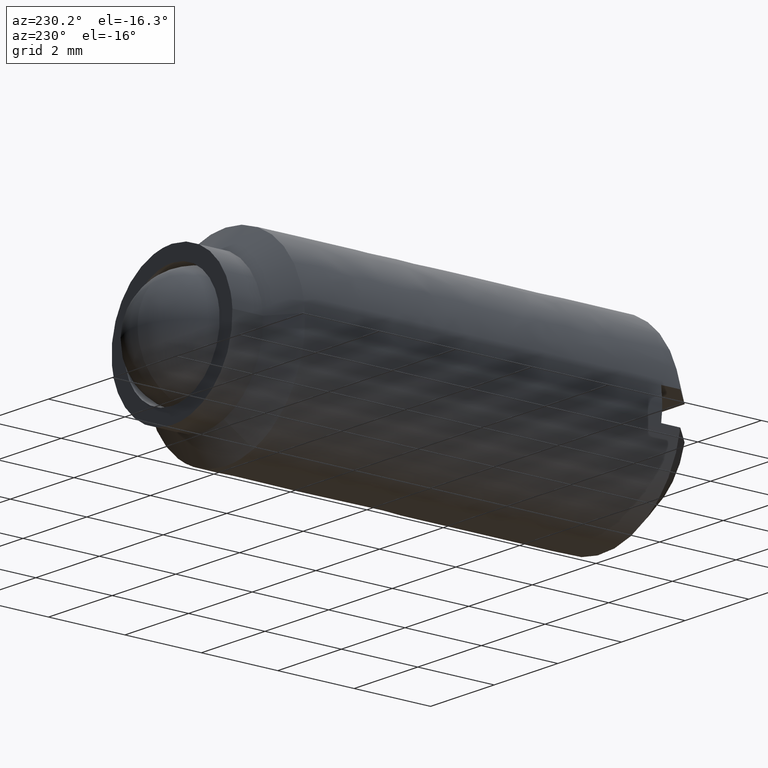
[diagram: clean part render]
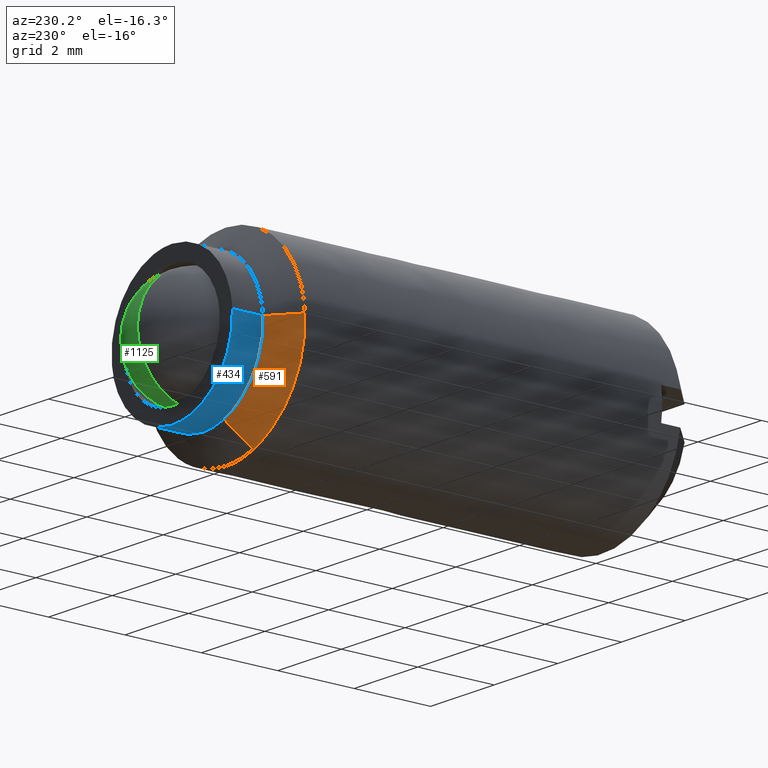
[diagram: same view with three faces highlighted in distinct colors, each labeled with its STEP entity id]
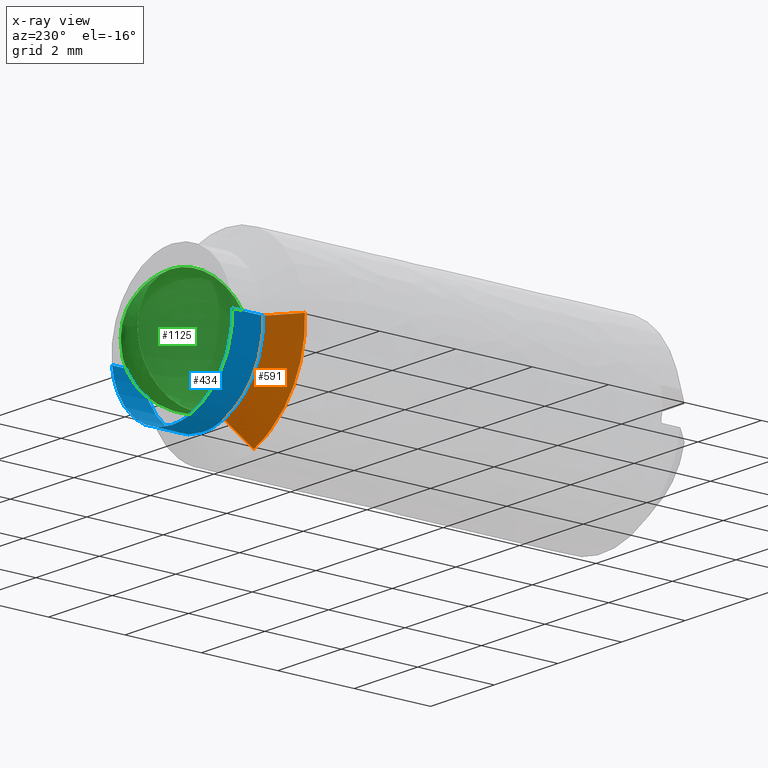
[diagram: x-ray of the same camera — body ghosted, the three highlighted faces saturated]
A machine part, auxiliary view with three faces highlighted in distinct colors.
The next image is the same camera in x-ray (body ghosted, the three faces saturated) — at least one of them is partly hidden behind the body in this view.
Their STEP definitions:

[orange] entity #591 — the highlighted face is a freeform B-spline surface patch.
#286=CARTESIAN_POINT('',(-1.896456117002499,-1.700000000003540,0.115992225129656));
#287=VERTEX_POINT('',#286);
#386=CARTESIAN_POINT('',(-0.668074151346452,-1.700000000000239,-1.778672799674979));
#387=VERTEX_POINT('',#386);
#401=CARTESIAN_POINT('',(-1.896456117002499,-1.700000000003540,0.115992225129656));
#402=CARTESIAN_POINT('',(-1.900000000000000,-1.700000000000000,0.058050250294034));
#403=CARTESIAN_POINT('',(-1.900000000000000,-1.700000000000000,-8.511014E-016));
#404=CARTESIAN_POINT('',(-1.900000000000000,-1.700000000000000,-1.315958231815637));
#405=CARTESIAN_POINT('',(-0.668074151346452,-1.700000000000239,-1.778672799674979));
#413=(BOUNDED_CURVE()B_SPLINE_CURVE(2,(#401,#402,#403,#404,#405),.UNSPECIFIED.,.F.,.U.)B_SPLINE_CURVE_WITH_KNOTS((3,2,3),(0.739332962237120,0.750000000000000,0.940284170898487),.UNSPECIFIED.)CURVE()GEOMETRIC_REPRESENTATION_ITEM()RATIONAL_B_SPLINE_CURVE((0.976072041662812,0.987502787897702,1.0,0.777068226785173,0.893499554635248))REPRESENTATION_ITEM(''));
#414=EDGE_CURVE('',#287,#387,#413,.T.);
#465=CARTESIAN_POINT('',(-2.495336996056258,-2.300000000002961,0.152621348859628));
#466=VERTEX_POINT('',#465);
#467=CARTESIAN_POINT('',(-1.896456117002499,-1.700000000003540,0.115992225129656));
#468=CARTESIAN_POINT('',(-2.495336996056258,-2.300000000002961,0.152621348859628));
#469=QUASI_UNIFORM_CURVE('',1,(#467,#468),.UNSPECIFIED.,.F.,.U.);
#470=EDGE_CURVE('',#287,#466,#469,.T.);
#534=CARTESIAN_POINT('',(-0.879044935992926,-2.300000000001367,-2.340358946937847));
#535=VERTEX_POINT('',#534);
#549=CARTESIAN_POINT('',(-0.668074151346452,-1.700000000000239,-1.778672799674979));
#550=CARTESIAN_POINT('',(-0.879044935992926,-2.300000000001367,-2.340358946937847));
#551=QUASI_UNIFORM_CURVE('',1,(#549,#550),.UNSPECIFIED.,.F.,.U.);
#552=EDGE_CURVE('',#387,#535,#551,.T.);
#557=CARTESIAN_POINT('',(-1.881484095025218,-1.685000000000000,0.115076497023204));
#558=CARTESIAN_POINT('',(-1.966502165108708,-1.685000000000000,-1.274956661698778));
#559=CARTESIAN_POINT('',(-0.662799881728113,-1.685000000000000,-1.764630645993999));
#560=CARTESIAN_POINT('',(-2.510683318580403,-2.315375000000000,0.153559970132490));
#561=CARTESIAN_POINT('',(-2.624132829474971,-2.315375000000001,-1.701323136827887));
#562=CARTESIAN_POINT('',(-0.884451062335201,-2.315375000000000,-2.354752154465334));
#570=(BOUNDED_SURFACE()B_SPLINE_SURFACE(2,1,((#557,#560),(#558,#561),(#559,#562)),.UNSPECIFIED.,.F.,.F.,.U.)B_SPLINE_SURFACE_WITH_KNOTS((3,3),(2,2),(0.0,3.311362208846373),(0.0,1.0),.UNSPECIFIED.)GEOMETRIC_REPRESENTATION_ITEM()RATIONAL_B_SPLINE_SURFACE(((1.0,1.0),(0.765685424949238,0.765685424949238),(0.906274169979695,0.906274169979695)))REPRESENTATION_ITEM('')SURFACE());
#571=ORIENTED_EDGE('',*,*,#414,.T.);
#572=ORIENTED_EDGE('',*,*,#552,.T.);
#573=CARTESIAN_POINT('',(-2.495336996056259,-2.300000000002961,0.152621348859628));
#574=CARTESIAN_POINT('',(-2.500000000000000,-2.300000000000000,0.076381908268839));
#575=CARTESIAN_POINT('',(-2.500000000000000,-2.300000000000000,-8.511014E-016));
#576=CARTESIAN_POINT('',(-2.500000000000000,-2.300000000000000,-1.731523989214695));
#577=CARTESIAN_POINT('',(-0.879044935992926,-2.300000000001367,-2.340358946937847));
#585=(BOUNDED_CURVE()B_SPLINE_CURVE(2,(#573,#574,#575,#576,#577),.UNSPECIFIED.,.F.,.U.)B_SPLINE_CURVE_WITH_KNOTS((3,2,3),(0.739332962238884,0.750000000000000,0.940284170897086),.UNSPECIFIED.)CURVE()GEOMETRIC_REPRESENTATION_ITEM()RATIONAL_B_SPLINE_CURVE((0.976072041666591,0.987502787899768,1.0,0.777068226786814,0.893499554633534))REPRESENTATION_ITEM(''));
#586=EDGE_CURVE('',#466,#535,#585,.T.);
#587=ORIENTED_EDGE('',*,*,#586,.F.);
#588=ORIENTED_EDGE('',*,*,#470,.F.);
#589=EDGE_LOOP('',(#571,#572,#587,#588));
#590=FACE_OUTER_BOUND('',#589,.T.);
#591=ADVANCED_FACE('',(#590),#570,.T.);

[blue] entity #434 — the highlighted face is a freeform B-spline surface patch.
#252=CARTESIAN_POINT('',(1.886718476477220,-0.899999999999935,-0.224261879304770));
#253=VERTEX_POINT('',#252);
#271=CARTESIAN_POINT('',(-1.896456117001057,-0.900000000000000,0.115992225124233));
#272=VERTEX_POINT('',#271);
#286=CARTESIAN_POINT('',(-1.896456117002499,-1.700000000003540,0.115992225129656));
#287=VERTEX_POINT('',#286);
#288=CARTESIAN_POINT('',(-1.896456117001057,-0.900000000000000,0.115992225124233));
#289=CARTESIAN_POINT('',(-1.896456117002499,-1.700000000003540,0.115992225129656));
#290=QUASI_UNIFORM_CURVE('',1,(#288,#289),.UNSPECIFIED.,.F.,.U.);
#291=EDGE_CURVE('',#272,#287,#290,.T.);
#308=CARTESIAN_POINT('',(1.886718471939577,-1.700000000000000,-0.224261917480567));
#309=VERTEX_POINT('',#308);
#325=CARTESIAN_POINT('',(1.886718476477220,-0.899999999999935,-0.224261879304770));
#326=CARTESIAN_POINT('',(1.886718471939577,-1.700000000000000,-0.224261917480567));
#327=QUASI_UNIFORM_CURVE('',1,(#325,#326),.UNSPECIFIED.,.F.,.U.);
#328=EDGE_CURVE('',#253,#309,#327,.T.);
#333=CARTESIAN_POINT('',(-1.894857721785848,-0.880000000000000,0.142125755886582));
#334=CARTESIAN_POINT('',(-1.895654631978397,-0.879999999999999,0.129096389410968));
#335=CARTESIAN_POINT('',(-2.012448342117775,-0.880000000000000,-1.780463891885319));
#336=CARTESIAN_POINT('',(-0.115992225116228,-0.880000000000000,-1.896456117001548));
#337=CARTESIAN_POINT('',(1.674932632595051,-0.880000000000000,-2.005993773791804));
#338=CARTESIAN_POINT('',(1.888303844454935,-0.880000000000000,-0.210924346309455));
#339=CARTESIAN_POINT('',(1.889881066098256,-0.880000000000000,-0.197655347518057));
#340=CARTESIAN_POINT('',(-1.894857721785848,-1.720500000000001,0.142125755886582));
#341=CARTESIAN_POINT('',(-1.895654631978397,-1.720500000000000,0.129096389410968));
#342=CARTESIAN_POINT('',(-2.012448342117775,-1.720500000000000,-1.780463891885319));
#343=CARTESIAN_POINT('',(-0.115992225116228,-1.720500000000000,-1.896456117001548));
#344=CARTESIAN_POINT('',(1.674932632595051,-1.720500000000000,-2.005993773791804));
#345=CARTESIAN_POINT('',(1.888303844454935,-1.720500000000000,-0.210924346309455));
#346=CARTESIAN_POINT('',(1.889881066098256,-1.720500000000001,-0.197655347518057));
#354=(BOUNDED_SURFACE()B_SPLINE_SURFACE(2,1,((#333,#340),(#334,#341),(#335,#342),(#336,#343),(#337,#344),(#338,#345),(#339,#346)),.UNSPECIFIED.,.F.,.F.,.U.)B_SPLINE_SURFACE_WITH_KNOTS((3,1,2,1,3),(2,2),(0.0,0.030850643711267,3.178873717746789,6.200975868820890,6.231830164430668),(0.0,1.0),.UNSPECIFIED.)GEOMETRIC_REPRESENTATION_ITEM()RATIONAL_B_SPLINE_SURFACE(((1.005740710361107,1.005740710361107),(1.002870355180554,1.002870355180554),(0.707106781186548,0.707106781186548),(1.0,1.0),(0.718822509939086,0.718822509939086),(0.980146840153292,0.980146840153292),(0.982787879511457,0.982787879511457)))REPRESENTATION_ITEM('')SURFACE());
#355=CARTESIAN_POINT('',(0.0,-0.900000000000000,-1.900000000000001));
#356=VERTEX_POINT('',#355);
#357=CARTESIAN_POINT('',(0.0,-0.900000000000000,-1.900000000000001));
#358=CARTESIAN_POINT('',(1.687534451488845,-0.900000000000000,-1.900000000000002));
#359=CARTESIAN_POINT('',(1.886718476477220,-0.899999999999935,-0.224261879304770));
#367=(BOUNDED_CURVE()B_SPLINE_CURVE(2,(#357,#358,#359),.UNSPECIFIED.,.F.,.U.)B_SPLINE_CURVE_WITH_KNOTS((3,3),(0.0,0.229562757159565),.UNSPECIFIED.)CURVE()GEOMETRIC_REPRESENTATION_ITEM()RATIONAL_B_SPLINE_CURVE((1.0,0.731050500543376,0.956027310142333))REPRESENTATION_ITEM(''));
#368=EDGE_CURVE('',#356,#253,#367,.T.);
#369=ORIENTED_EDGE('',*,*,#368,.T.);
#370=ORIENTED_EDGE('',*,*,#328,.T.);
#371=CARTESIAN_POINT('',(0.0,-1.700000000000000,-1.900000000000001));
#372=VERTEX_POINT('',#371);
#373=CARTESIAN_POINT('',(0.0,-1.700000000000000,-1.900000000000001));
#374=CARTESIAN_POINT('',(1.687534417102971,-1.700000000000001,-1.900000000000001));
#375=CARTESIAN_POINT('',(1.886718471939578,-1.700000000000000,-0.224261917480567));
#383=(BOUNDED_CURVE()B_SPLINE_CURVE(2,(#373,#374,#375),.UNSPECIFIED.,.F.,.U.)B_SPLINE_CURVE_WITH_KNOTS((3,3),(0.0,0.229562753739958),.UNSPECIFIED.)CURVE()GEOMETRIC_REPRESENTATION_ITEM()RATIONAL_B_SPLINE_CURVE((1.0,0.731050504549695,0.956027303439745))REPRESENTATION_ITEM(''));
#384=EDGE_CURVE('',#372,#309,#383,.T.);
#385=ORIENTED_EDGE('',*,*,#384,.F.);
#386=CARTESIAN_POINT('',(-0.668074151346452,-1.700000000000239,-1.778672799674979));
#387=VERTEX_POINT('',#386);
#388=CARTESIAN_POINT('',(-0.668074151346452,-1.700000000000240,-1.778672799674979));
#389=CARTESIAN_POINT('',(-0.345054033529472,-1.700000000000000,-1.900000000000001));
#390=CARTESIAN_POINT('',(0.0,-1.700000000000000,-1.900000000000001));
#398=(BOUNDED_CURVE()B_SPLINE_CURVE(2,(#388,#389,#390),.UNSPECIFIED.,.F.,.U.)B_SPLINE_CURVE_WITH_KNOTS((3,3),(0.940284170898487,1.0),.UNSPECIFIED.)CURVE()GEOMETRIC_REPRESENTATION_ITEM()RATIONAL_B_SPLINE_CURVE((0.893499554635248,0.930038554401375,1.0))REPRESENTATION_ITEM(''));
#399=EDGE_CURVE('',#387,#372,#398,.T.);
#400=ORIENTED_EDGE('',*,*,#399,.F.);
#401=CARTESIAN_POINT('',(-1.896456117002499,-1.700000000003540,0.115992225129656));
#402=CARTESIAN_POINT('',(-1.900000000000000,-1.700000000000000,0.058050250294034));
#403=CARTESIAN_POINT('',(-1.900000000000000,-1.700000000000000,-8.511014E-016));
#404=CARTESIAN_POINT('',(-1.900000000000000,-1.700000000000000,-1.315958231815637));
#405=CARTESIAN_POINT('',(-0.668074151346452,-1.700000000000239,-1.778672799674979));
#413=(BOUNDED_CURVE()B_SPLINE_CURVE(2,(#401,#402,#403,#404,#405),.UNSPECIFIED.,.F.,.U.)B_SPLINE_CURVE_WITH_KNOTS((3,2,3),(0.739332962237120,0.750000000000000,0.940284170898487),.UNSPECIFIED.)CURVE()GEOMETRIC_REPRESENTATION_ITEM()RATIONAL_B_SPLINE_CURVE((0.976072041662812,0.987502787897702,1.0,0.777068226785173,0.893499554635248))REPRESENTATION_ITEM(''));
#414=EDGE_CURVE('',#287,#387,#413,.T.);
#415=ORIENTED_EDGE('',*,*,#414,.F.);
#416=ORIENTED_EDGE('',*,*,#291,.F.);
#417=CARTESIAN_POINT('',(-1.896456117001057,-0.900000000000000,0.115992225124233));
#418=CARTESIAN_POINT('',(-1.900000000000000,-0.900000000000000,0.058050250275346));
#419=CARTESIAN_POINT('',(-1.900000000000000,-0.900000000000000,-8.511014E-016));
#420=CARTESIAN_POINT('',(-1.900000000000000,-0.900000000000000,-1.900000000000001));
#421=CARTESIAN_POINT('',(0.0,-0.900000000000000,-1.900000000000001));
#429=(BOUNDED_CURVE()B_SPLINE_CURVE(2,(#417,#418,#419,#420,#421),.UNSPECIFIED.,.F.,.U.)B_SPLINE_CURVE_WITH_KNOTS((3,2,3),(0.739332962240511,0.750000000000000,1.0),.UNSPECIFIED.)CURVE()GEOMETRIC_REPRESENTATION_ITEM()RATIONAL_B_SPLINE_CURVE((0.976072041670080,0.987502787901675,1.0,0.707106781186547,1.0))REPRESENTATION_ITEM(''));
#430=EDGE_CURVE('',#272,#356,#429,.T.);
#431=ORIENTED_EDGE('',*,*,#430,.T.);
#432=EDGE_LOOP('',(#369,#370,#385,#400,#415,#416,#431));
#433=FACE_OUTER_BOUND('',#432,.T.);
#434=ADVANCED_FACE('',(#433),#354,.T.);

[green] entity #1125 — the highlighted face is a freeform B-spline surface patch.
#1045=CARTESIAN_POINT('',(-0.562500000000000,-2.483258295159517,-0.983258295159516));
#1046=CARTESIAN_POINT('',(-0.367924528301887,-2.390498078635035,-1.187330771513378));
#1047=CARTESIAN_POINT('',(-0.071428571428571,-1.874574588632197,-1.498298354528787));
#1048=CARTESIAN_POINT('',(-0.071428571428571,-1.125425411367803,-1.498298354528787));
#1049=CARTESIAN_POINT('',(-0.367924528301887,-0.609501921364966,-1.187330771513378));
#1050=CARTESIAN_POINT('',(-0.562500000000000,-0.516741704840483,-0.983258295159516));
#1051=CARTESIAN_POINT('',(-0.367924528301887,-2.687330771513379,-0.890498078635033));
#1052=CARTESIAN_POINT('',(-0.071428571428571,-2.623723765896591,-1.123723765896590));
#1053=CARTESIAN_POINT('',(0.435483870967742,-2.007488152340396,-1.522464457021187));
#1054=CARTESIAN_POINT('',(0.435483870967742,-0.992511847659605,-1.522464457021187));
#1055=CARTESIAN_POINT('',(-0.071428571428571,-0.376276234103409,-1.123723765896590));
#1056=CARTESIAN_POINT('',(-0.367924528301887,-0.312669228486621,-0.890498078635033));
#1057=CARTESIAN_POINT('',(-0.071428571428571,-2.998298354528788,-0.374574588632196));
#1058=CARTESIAN_POINT('',(0.435483870967742,-3.022464457021188,-0.507488152340395));
#1059=CARTESIAN_POINT('',(1.500000000000000,-2.286606636127614,-0.786606636127613));
#1060=CARTESIAN_POINT('',(1.500000000000000,-0.713393363872387,-0.786606636127613));
#1061=CARTESIAN_POINT('',(0.435483870967742,0.022464457021187,-0.507488152340395));
#1062=CARTESIAN_POINT('',(-0.071428571428571,-0.001701645471212,-0.374574588632196));
#1063=CARTESIAN_POINT('',(-0.071428571428571,-2.998298354528788,0.374574588632198));
#1064=CARTESIAN_POINT('',(0.435483870967742,-3.022464457021188,0.507488152340396));
#1065=CARTESIAN_POINT('',(1.500000000000000,-2.286606636127614,0.786606636127614));
#1066=CARTESIAN_POINT('',(1.500000000000000,-0.713393363872387,0.786606636127614));
#1067=CARTESIAN_POINT('',(0.435483870967742,0.022464457021187,0.507488152340396));
#1068=CARTESIAN_POINT('',(-0.071428571428571,-0.001701645471212,0.374574588632198));
#1069=CARTESIAN_POINT('',(-0.367924528301887,-2.687330771513379,0.890498078635035));
#1070=CARTESIAN_POINT('',(-0.071428571428571,-2.623723765896591,1.123723765896592));
#1071=CARTESIAN_POINT('',(0.435483870967742,-2.007488152340396,1.522464457021189));
#1072=CARTESIAN_POINT('',(0.435483870967742,-0.992511847659605,1.522464457021189));
#1073=CARTESIAN_POINT('',(-0.071428571428571,-0.376276234103409,1.123723765896592));
#1074=CARTESIAN_POINT('',(-0.367924528301887,-0.312669228486621,0.890498078635035));
#1075=CARTESIAN_POINT('',(-0.562500000000000,-2.483258295159517,0.983258295159517));
#1076=CARTESIAN_POINT('',(-0.367924528301887,-2.390498078635035,1.187330771513380));
#1077=CARTESIAN_POINT('',(-0.071428571428571,-1.874574588632197,1.498298354528788));
#1078=CARTESIAN_POINT('',(-0.071428571428571,-1.125425411367803,1.498298354528788));
#1079=CARTESIAN_POINT('',(-0.367924528301887,-0.609501921364966,1.187330771513380));
#1080=CARTESIAN_POINT('',(-0.562500000000000,-0.516741704840483,0.983258295159517));
#1088=(BOUNDED_SURFACE()B_SPLINE_SURFACE(2,2,((#1045,#1051,#1057,#1063,#1069,#1075),(#1046,#1052,#1058,#1064,#1070,#1076),(#1047,#1053,#1059,#1065,#1071,#1077),(#1048,#1054,#1060,#1066,#1072,#1078),(#1049,#1055,#1061,#1067,#1073,#1079),(#1050,#1056,#1062,#1068,#1074,#1080)),.UNSPECIFIED.,.F.,.F.,.U.)GEOMETRIC_REPRESENTATION_ITEM()QUASI_UNIFORM_SURFACE()RATIONAL_B_SPLINE_SURFACE(((3.200000000000000,2.650000000000000,2.100000000000000,2.100000000000000,2.650000000000000,3.200000000000000),(2.650000000000000,2.100000000000000,1.550000000000000,1.550000000000000,2.100000000000000,2.650000000000000),(2.100000000000000,1.550000000000000,1.0,1.0,1.550000000000000,2.100000000000000),(2.100000000000000,1.550000000000000,1.0,1.0,1.550000000000000,2.100000000000000),(2.650000000000000,2.100000000000000,1.550000000000000,1.550000000000000,2.100000000000000,2.650000000000000),(3.200000000000000,2.650000000000000,2.100000000000000,2.100000000000000,2.650000000000000,3.200000000000000)))REPRESENTATION_ITEM('')SURFACE());
#1089=CARTESIAN_POINT('',(0.0,0.0,7.592559E-016));
#1090=VERTEX_POINT('',#1089);
#1091=CARTESIAN_POINT('',(0.0,-3.0,7.592559E-016));
#1092=VERTEX_POINT('',#1091);
#1093=CARTESIAN_POINT('',(0.0,0.0,7.592559E-016));
#1094=CARTESIAN_POINT('',(0.0,0.0,1.500000000000001));
#1095=CARTESIAN_POINT('',(0.0,-1.500000000000000,1.500000000000001));
#1096=CARTESIAN_POINT('',(0.0,-3.0,1.500000000000001));
#1097=CARTESIAN_POINT('',(0.0,-3.0,7.592559E-016));
#1105=(BOUNDED_CURVE()B_SPLINE_CURVE(2,(#1093,#1094,#1095,#1096,#1097),.UNSPECIFIED.,.F.,.U.)B_SPLINE_CURVE_WITH_KNOTS((3,2,3),(0.0,0.500000000000000,1.0),.UNSPECIFIED.)CURVE()GEOMETRIC_REPRESENTATION_ITEM()RATIONAL_B_SPLINE_CURVE((1.0,0.707106781186548,1.0,0.707106781186548,1.0))REPRESENTATION_ITEM(''));
#1106=EDGE_CURVE('',#1090,#1092,#1105,.T.);
#1107=ORIENTED_EDGE('',*,*,#1106,.T.);
#1108=CARTESIAN_POINT('',(0.0,0.0,7.592559E-016));
#1109=CARTESIAN_POINT('',(0.0,0.0,-1.500000000000000));
#1110=CARTESIAN_POINT('',(0.0,-1.500000000000000,-1.499999999999999));
#1111=CARTESIAN_POINT('',(0.0,-3.0,-1.500000000000000));
#1112=CARTESIAN_POINT('',(0.0,-3.0,7.592559E-016));
#1120=(BOUNDED_CURVE()B_SPLINE_CURVE(2,(#1108,#1109,#1110,#1111,#1112),.UNSPECIFIED.,.F.,.U.)B_SPLINE_CURVE_WITH_KNOTS((3,2,3),(0.0,0.500000000000000,1.0),.UNSPECIFIED.)CURVE()GEOMETRIC_REPRESENTATION_ITEM()RATIONAL_B_SPLINE_CURVE((1.0,0.707106781186548,1.0,0.707106781186548,1.0))REPRESENTATION_ITEM(''));
#1121=EDGE_CURVE('',#1090,#1092,#1120,.T.);
#1122=ORIENTED_EDGE('',*,*,#1121,.F.);
#1123=EDGE_LOOP('',(#1107,#1122));
#1124=FACE_OUTER_BOUND('',#1123,.T.);
#1125=ADVANCED_FACE('',(#1124),#1088,.T.);